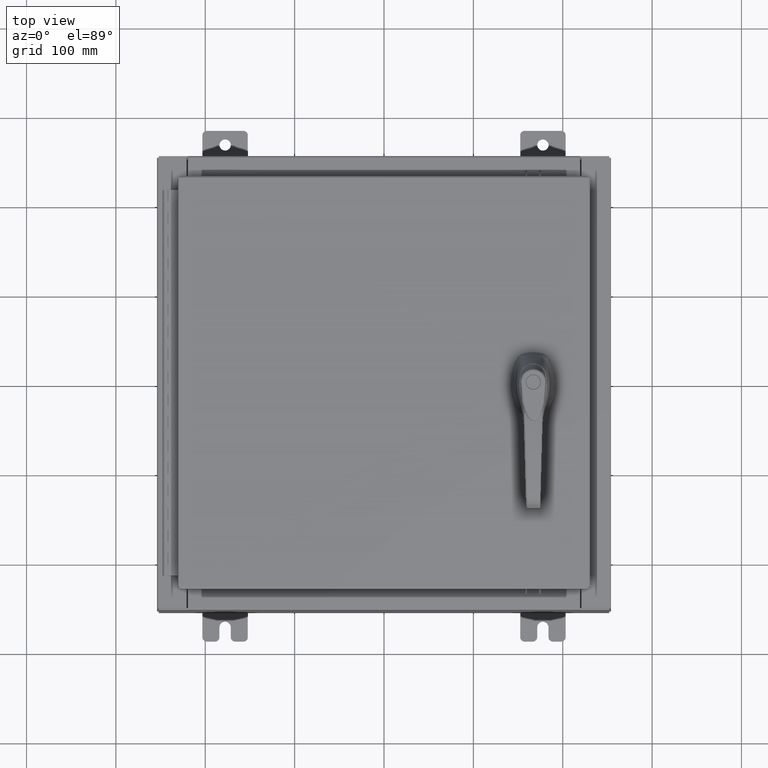
[diagram: clean part render]
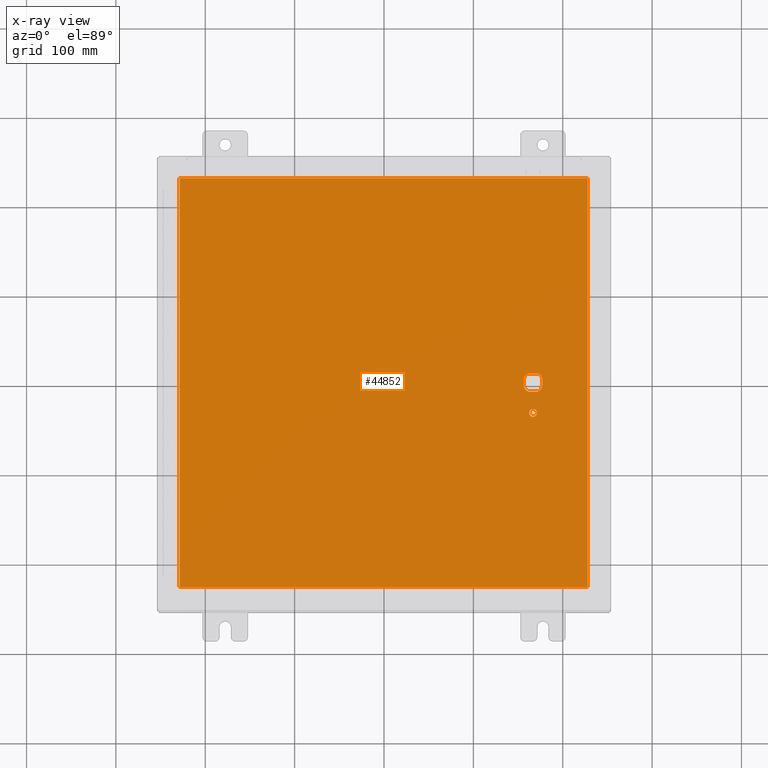
[diagram: x-ray — body ghosted, one internal face saturated and labeled with its STEP entity id]
A machine part, top view, then the same camera in x-ray: the body is ghosted and one INTERNAL B-rep face — a face not visible from any outside direction — is saturated and labeled: STEP entity #44852.
In plain terms, the highlighted planar face has unit normal (0, 0, -1).
Its self-contained STEP definition (entity closure, byte-faithful):
#3957 = LINE ( 'NONE', #26656, #6635 ) ;
#6359 = CARTESIAN_POINT ( 'NONE',  ( -8.990299999999997700, -9.006299999999999500, -0.07470000000000000300 ) ) ;
#6635 = VECTOR ( 'NONE', #77127, 39.37007874015748100 ) ;
#6774 = VERTEX_POINT ( 'NONE', #6359 ) ;
#7149 = ORIENTED_EDGE ( 'NONE', *, *, #83972, .T. ) ;
#8745 = CARTESIAN_POINT ( 'NONE',  ( 6.778227370756309400, -0.4029999999999252000, -0.07470000000000003000 ) ) ;
#9442 = LINE ( 'NONE', #70513, #71449 ) ;
#10063 = EDGE_CURVE ( 'NONE', #69433, #105090, #32372, .T. ) ;
#10424 = LINE ( 'NONE', #58726, #97578 ) ;
#10536 = CARTESIAN_POINT ( 'NONE',  ( 8.990300000000001300, 9.006299999999999500, -0.07470000000000021100 ) ) ;
#10831 = DIRECTION ( 'NONE',  ( -0.0000000000000000000, -0.0000000000000000000, 1.000000000000000000 ) ) ;
#11304 = DIRECTION ( 'NONE',  ( -0.0000000000000000000, -0.0000000000000000000, 1.000000000000000000 ) ) ;
#11828 = ORIENTED_EDGE ( 'NONE', *, *, #33980, .F. ) ;
#12047 = ORIENTED_EDGE ( 'NONE', *, *, #51969, .T. ) ;
#12507 = VECTOR ( 'NONE', #78629, 39.37007874015748100 ) ;
#12674 = CARTESIAN_POINT ( 'NONE',  ( 6.377772629243690300, 0.4029999999999252000, -0.07470000000000003000 ) ) ;
#13646 = CARTESIAN_POINT ( 'NONE',  ( 6.980999999999925300, -0.2002273707563075900, -0.07470000000000003000 ) ) ;
#13919 = LINE ( 'NONE', #10536, #106294 ) ;
#15808 = VECTOR ( 'NONE', #108175, 39.37007874015748100 ) ;
#16263 = DIRECTION ( 'NONE',  ( 1.000000000000000000, 0.0000000000000000000, 0.0000000000000000000 ) ) ;
#16553 = ORIENTED_EDGE ( 'NONE', *, *, #18108, .F. ) ;
#16729 = DIRECTION ( 'NONE',  ( -0.0000000000000000000, -0.0000000000000000000, 1.000000000000000000 ) ) ;
#17391 = EDGE_CURVE ( 'NONE', #23999, #68479, #71358, .T. ) ;
#17912 = ORIENTED_EDGE ( 'NONE', *, *, #71868, .F. ) ;
#18108 = EDGE_CURVE ( 'NONE', #26604, #6774, #3957, .T. ) ;
#18517 = VECTOR ( 'NONE', #16263, 39.37007874015748100 ) ;
#19639 = CARTESIAN_POINT ( 'NONE',  ( 6.980999999999925300, 1.904937449034470600E-014, -0.07470000000000003000 ) ) ;
#19745 = DIRECTION ( 'NONE',  ( -0.0000000000000000000, -0.0000000000000000000, 1.000000000000000000 ) ) ;
#23733 = AXIS2_PLACEMENT_3D ( 'NONE', #67250, #16729, #75708 ) ;
#23999 = VERTEX_POINT ( 'NONE', #91218 ) ;
#25177 = VERTEX_POINT ( 'NONE', #8745 ) ;
#25988 = ORIENTED_EDGE ( 'NONE', *, *, #10063, .F. ) ;
#26604 = VERTEX_POINT ( 'NONE', #31596 ) ;
#26656 = CARTESIAN_POINT ( 'NONE',  ( -8.990299999999997700, 9.006299999999999500, -0.07470000000000019700 ) ) ;
#30703 = AXIS2_PLACEMENT_3D ( 'NONE', #61362, #10831, #69851 ) ;
#31596 = CARTESIAN_POINT ( 'NONE',  ( -8.990299999999997700, 9.006299999999997800, -0.07470000000000000300 ) ) ;
#32210 = EDGE_CURVE ( 'NONE', #62981, #80929, #103878, .T. ) ;
#32361 = VERTEX_POINT ( 'NONE', #12674 ) ;
#32372 = LINE ( 'NONE', #19639, #12507 ) ;
#32632 = CARTESIAN_POINT ( 'NONE',  ( 6.577999999999999400, 0.0000000000000000000, -0.07470000000000003000 ) ) ;
#33980 = EDGE_CURVE ( 'NONE', #47097, #26604, #13919, .T. ) ;
#34157 = FACE_OUTER_BOUND ( 'NONE', #89122, .T. ) ;
#37776 = ORIENTED_EDGE ( 'NONE', *, *, #38899, .T. ) ;
#38899 = EDGE_CURVE ( 'NONE', #68479, #100551, #93422, .T. ) ;
#38943 = DIRECTION ( 'NONE',  ( -0.0000000000000000000, -0.0000000000000000000, 1.000000000000000000 ) ) ;
#40407 = ORIENTED_EDGE ( 'NONE', *, *, #99058, .F. ) ;
#41132 = DIRECTION ( 'NONE',  ( -1.000000000000000000, 8.881784197001256300E-016, 0.0000000000000000000 ) ) ;
#42109 = CARTESIAN_POINT ( 'NONE',  ( 0.0000000000000000000, 0.0000000000000000000, -0.07470000000000000300 ) ) ;
#44852 = ADVANCED_FACE ( 'NONE', ( #69759, #34157, #78989 ), #59021, .T. ) ;
#46119 = AXIS2_PLACEMENT_3D ( 'NONE', #42109, #67128, #75943 ) ;
#46295 = LINE ( 'NONE', #100379, #18517 ) ;
#47097 = VERTEX_POINT ( 'NONE', #95788 ) ;
#48425 = AXIS2_PLACEMENT_3D ( 'NONE', #70239, #19745, #78727 ) ;
#49233 = CARTESIAN_POINT ( 'NONE',  ( 8.990299999999999500, -9.006299999999999500, -0.07470000000000076600 ) ) ;
#51969 = EDGE_CURVE ( 'NONE', #100551, #25177, #46295, .T. ) ;
#53803 = VERTEX_POINT ( 'NONE', #62087 ) ;
#55405 = LINE ( 'NONE', #49233, #15808 ) ;
#58726 = CARTESIAN_POINT ( 'NONE',  ( 0.0000000000000000000, 0.4029999999999252000, -0.07470000000000003000 ) ) ;
#59021 = PLANE ( 'NONE',  #46119 ) ;
#59595 = CARTESIAN_POINT ( 'NONE',  ( 6.175000000000073500, 0.0000000000000000000, -0.07470000000000003000 ) ) ;
#59855 = EDGE_CURVE ( 'NONE', #69433, #53803, #67957, .T. ) ;
#61085 = DIRECTION ( 'NONE',  ( -1.000000000000000000, -0.0000000000000000000, -0.0000000000000000000 ) ) ;
#61362 = CARTESIAN_POINT ( 'NONE',  ( 6.577999999999999400, 0.0000000000000000000, -0.07470000000000003000 ) ) ;
#61850 = CARTESIAN_POINT ( 'NONE',  ( 6.577999999999999400, 0.0000000000000000000, -0.07470000000000003000 ) ) ;
#62087 = CARTESIAN_POINT ( 'NONE',  ( 6.778227370756309400, 0.4029999999999250300, -0.07470000000000003000 ) ) ;
#62981 = VERTEX_POINT ( 'NONE', #73612 ) ;
#67128 = DIRECTION ( 'NONE',  ( 0.0000000000000000000, 0.0000000000000000000, -1.000000000000000000 ) ) ;
#67250 = CARTESIAN_POINT ( 'NONE',  ( 6.577999999999999400, -1.338000000000000100, -0.07470000000000003000 ) ) ;
#67957 = CIRCLE ( 'NONE', #30703, 0.4499999999999156900 ) ;
#68032 = DIRECTION ( 'NONE',  ( 0.0000000000000000000, -1.000000000000000000, 0.0000000000000000000 ) ) ;
#68479 = VERTEX_POINT ( 'NONE', #85702 ) ;
#69433 = VERTEX_POINT ( 'NONE', #94775 ) ;
#69715 = AXIS2_PLACEMENT_3D ( 'NONE', #89420, #38943, #97908 ) ;
#69759 = FACE_BOUND ( 'NONE', #76220, .T. ) ;
#69818 = AXIS2_PLACEMENT_3D ( 'NONE', #32632, #91606, #41132 ) ;
#69851 = DIRECTION ( 'NONE',  ( -1.000000000000000000, 0.0000000000000000000, 0.0000000000000000000 ) ) ;
#70239 = CARTESIAN_POINT ( 'NONE',  ( 6.577999999999999400, -1.338000000000000100, -0.07470000000000003000 ) ) ;
#70320 = DIRECTION ( 'NONE',  ( -1.000000000000000000, 0.0000000000000000000, 0.0000000000000000000 ) ) ;
#70513 = CARTESIAN_POINT ( 'NONE',  ( -8.990299999999999500, -9.006299999999999500, -0.07470000000000021100 ) ) ;
#71358 = LINE ( 'NONE', #59595, #105645 ) ;
#71449 = VECTOR ( 'NONE', #79016, 39.37007874015748100 ) ;
#71868 = EDGE_CURVE ( 'NONE', #109360, #47097, #55405, .T. ) ;
#72701 = ORIENTED_EDGE ( 'NONE', *, *, #88592, .T. ) ;
#73612 = CARTESIAN_POINT ( 'NONE',  ( 6.749500000000001200, -1.338000000000000100, -0.07470000000000003000 ) ) ;
#75646 = DIRECTION ( 'NONE',  ( -1.000000000000000000, 0.0000000000000000000, 0.0000000000000000000 ) ) ;
#75708 = DIRECTION ( 'NONE',  ( -1.000000000000000000, 0.0000000000000000000, 0.0000000000000000000 ) ) ;
#75943 = DIRECTION ( 'NONE',  ( -1.000000000000000000, 0.0000000000000000000, -0.0000000000000000000 ) ) ;
#76220 = EDGE_LOOP ( 'NONE', ( #83228, #72701 ) ) ;
#77127 = DIRECTION ( 'NONE',  ( 0.0000000000000000000, -1.000000000000000000, 0.0000000000000000000 ) ) ;
#77623 = ORIENTED_EDGE ( 'NONE', *, *, #82831, .T. ) ;
#78629 = DIRECTION ( 'NONE',  ( 2.728745808672813300E-015, -1.000000000000000000, 0.0000000000000000000 ) ) ;
#78727 = DIRECTION ( 'NONE',  ( -1.000000000000000000, 0.0000000000000000000, 0.0000000000000000000 ) ) ;
#78989 = FACE_BOUND ( 'NONE', #108188, .T. ) ;
#79016 = DIRECTION ( 'NONE',  ( 1.000000000000000000, -0.0000000000000000000, -0.0000000000000000000 ) ) ;
#80239 = CIRCLE ( 'NONE', #69715, 0.4499999999999156900 ) ;
#80929 = VERTEX_POINT ( 'NONE', #92868 ) ;
#82831 = EDGE_CURVE ( 'NONE', #32361, #23999, #88480, .T. ) ;
#83228 = ORIENTED_EDGE ( 'NONE', *, *, #32210, .T. ) ;
#83972 = EDGE_CURVE ( 'NONE', #53803, #32361, #10424, .T. ) ;
#85702 = CARTESIAN_POINT ( 'NONE',  ( 6.175000000000073500, -0.2002273707563079800, -0.07470000000000003000 ) ) ;
#88480 = CIRCLE ( 'NONE', #107565, 0.4499999999999156900 ) ;
#88592 = EDGE_CURVE ( 'NONE', #80929, #62981, #104232, .T. ) ;
#88962 = CARTESIAN_POINT ( 'NONE',  ( 8.990299999999999500, -9.006299999999999500, -0.07470000000000000300 ) ) ;
#89122 = EDGE_LOOP ( 'NONE', ( #17912, #40407, #16553, #11828 ) ) ;
#89420 = CARTESIAN_POINT ( 'NONE',  ( 6.577999999999999400, 0.0000000000000000000, -0.07470000000000003000 ) ) ;
#89617 = ORIENTED_EDGE ( 'NONE', *, *, #91034, .T. ) ;
#91034 = EDGE_CURVE ( 'NONE', #25177, #105090, #80239, .T. ) ;
#91218 = CARTESIAN_POINT ( 'NONE',  ( 6.175000000000073500, 0.2002273707563080300, -0.07470000000000003000 ) ) ;
#91606 = DIRECTION ( 'NONE',  ( -0.0000000000000000000, -0.0000000000000000000, 1.000000000000000000 ) ) ;
#92868 = CARTESIAN_POINT ( 'NONE',  ( 6.406499999999998500, -1.338000000000000100, -0.07470000000000003000 ) ) ;
#93422 = CIRCLE ( 'NONE', #69818, 0.4499999999999156900 ) ;
#94775 = CARTESIAN_POINT ( 'NONE',  ( 6.980999999999925300, 0.2002273707563080300, -0.07470000000000003000 ) ) ;
#95788 = CARTESIAN_POINT ( 'NONE',  ( 8.990299999999997700, 9.006299999999999500, -0.07470000000000000300 ) ) ;
#97578 = VECTOR ( 'NONE', #75646, 39.37007874015748100 ) ;
#97908 = DIRECTION ( 'NONE',  ( -1.000000000000000000, 1.776356839400251300E-015, 0.0000000000000000000 ) ) ;
#99058 = EDGE_CURVE ( 'NONE', #6774, #109360, #9442, .T. ) ;
#100379 = CARTESIAN_POINT ( 'NONE',  ( 0.0000000000000000000, -0.4029999999999252000, -0.07470000000000003000 ) ) ;
#100551 = VERTEX_POINT ( 'NONE', #103301 ) ;
#100900 = ORIENTED_EDGE ( 'NONE', *, *, #59855, .T. ) ;
#103301 = CARTESIAN_POINT ( 'NONE',  ( 6.377772629243690300, -0.4029999999999250300, -0.07470000000000003000 ) ) ;
#103878 = CIRCLE ( 'NONE', #48425, 0.1715000000000011500 ) ;
#104232 = CIRCLE ( 'NONE', #23733, 0.1715000000000011500 ) ;
#105090 = VERTEX_POINT ( 'NONE', #13646 ) ;
#105645 = VECTOR ( 'NONE', #68032, 39.37007874015748100 ) ;
#106294 = VECTOR ( 'NONE', #61085, 39.37007874015748100 ) ;
#106796 = ORIENTED_EDGE ( 'NONE', *, *, #17391, .T. ) ;
#107565 = AXIS2_PLACEMENT_3D ( 'NONE', #61850, #11304, #70320 ) ;
#108175 = DIRECTION ( 'NONE',  ( 0.0000000000000000000, 1.000000000000000000, 0.0000000000000000000 ) ) ;
#108188 = EDGE_LOOP ( 'NONE', ( #89617, #25988, #100900, #7149, #77623, #106796, #37776, #12047 ) ) ;
#109360 = VERTEX_POINT ( 'NONE', #88962 ) ;